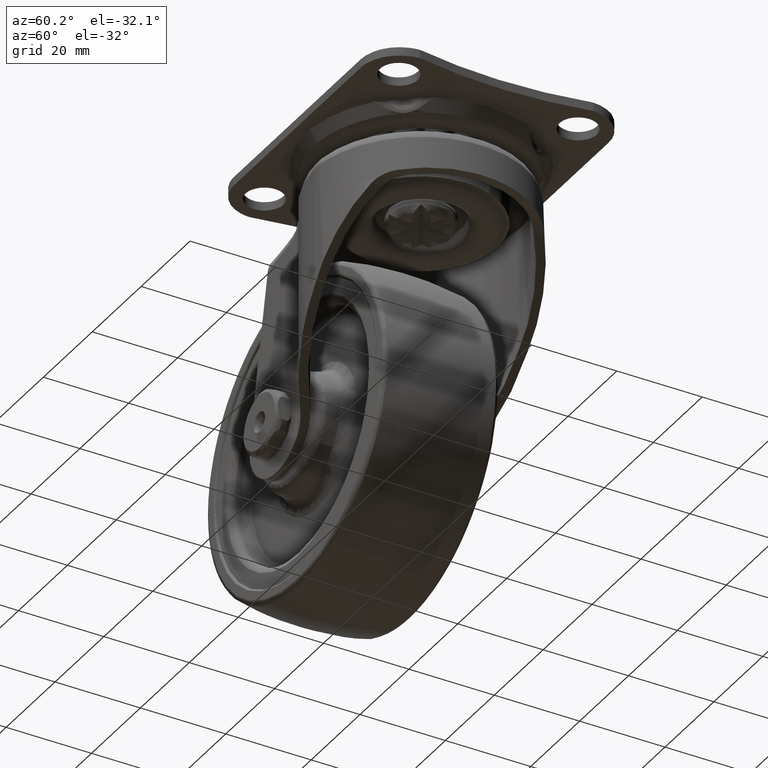
[diagram: clean part render]
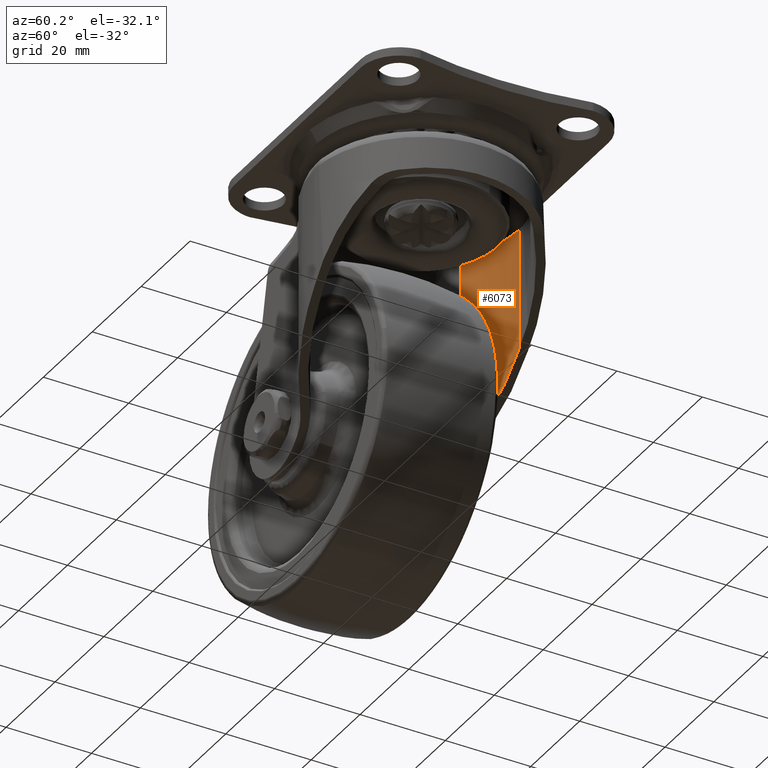
[diagram: same view with one face highlighted and labeled with its STEP entity id]
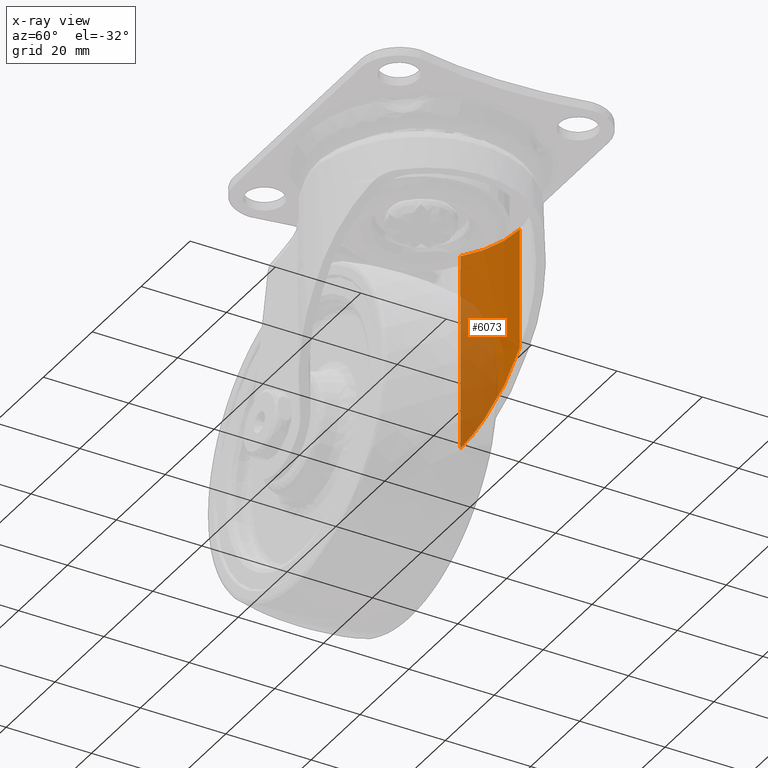
[diagram: x-ray of the same camera — body ghosted, the highlighted face saturated]
A machine part, auxiliary view. The second image highlights one B-rep face of the part: STEP entity #6073.
The next image is the same camera in x-ray: the body ghosted, the highlighted face saturated — about 42% of this face is hidden behind the body in this view.
In plain terms, the highlighted face is a freeform B-spline surface patch.
Its self-contained STEP definition (entity closure, byte-faithful):
#1794=CARTESIAN_POINT('',(0.0,22.999990000000000,-10.606000999999980));
#1795=VERTEX_POINT('',#1794);
#1905=CARTESIAN_POINT('',(-14.767029445485040,17.633331544443848,-10.606000999999980));
#1906=VERTEX_POINT('',#1905);
#1920=CARTESIAN_POINT('',(0.0,22.999990000000000,-10.606000999999980));
#1921=CARTESIAN_POINT('',(-8.358694703418935,22.999990000000004,-10.606000999999980));
#1922=CARTESIAN_POINT('',(-14.767029445485029,17.633331544443841,-10.606000999999980));
#1930=(BOUNDED_CURVE()B_SPLINE_CURVE(2,(#1920,#1921,#1922),.UNSPECIFIED.,.F.,.U.)CURVE()GEOMETRIC_REPRESENTATION_ITEM()QUASI_UNIFORM_CURVE()RATIONAL_B_SPLINE_CURVE((1.0,0.939858213301961,1.0))REPRESENTATION_ITEM(''));
#1931=EDGE_CURVE('',#1795,#1906,#1930,.T.);
#5392=CARTESIAN_POINT('',(-5.551115E-014,22.999990000000000,-39.023656566777198));
#5393=VERTEX_POINT('',#5392);
#5399=CARTESIAN_POINT('',(-14.767029445485040,17.633331544443848,-56.788594440344497));
#5400=VERTEX_POINT('',#5399);
#5401=CARTESIAN_POINT('',(1.408297E-015,22.999990000000000,-39.023656566777092));
#5402=CARTESIAN_POINT('',(-8.358694703418925,22.999989999999997,-49.079280323642735));
#5403=CARTESIAN_POINT('',(-14.767029445485020,17.633331544443859,-56.788594440344433));
#5411=(BOUNDED_CURVE()B_SPLINE_CURVE(2,(#5401,#5402,#5403),.UNSPECIFIED.,.F.,.U.)CURVE()GEOMETRIC_REPRESENTATION_ITEM()QUASI_UNIFORM_CURVE()RATIONAL_B_SPLINE_CURVE((1.0,0.939858213301959,1.0))REPRESENTATION_ITEM(''));
#5412=EDGE_CURVE('',#5393,#5400,#5411,.T.);
#6037=CARTESIAN_POINT('',(-14.767029445485040,17.633331544443848,-56.788594440344497));
#6038=CARTESIAN_POINT('',(-14.767029445485040,17.633331544443848,-10.606000999999980));
#6039=QUASI_UNIFORM_CURVE('',1,(#6037,#6038),.UNSPECIFIED.,.F.,.U.);
#6040=EDGE_CURVE('',#5400,#1906,#6039,.T.);
#6049=CARTESIAN_POINT('',(-15.240254482761530,17.225974088589791,-57.943159276353107));
#6050=CARTESIAN_POINT('',(-15.240254482761530,17.225974088589791,-9.422572043091144));
#6051=CARTESIAN_POINT('',(-8.375057302278645,23.299787480321267,-57.943159276353121));
#6052=CARTESIAN_POINT('',(-8.375057302278645,23.299787480321267,-9.422572043091146));
#6053=CARTESIAN_POINT('',(0.785948560205467,22.986557481728553,-57.943159276353114));
#6054=CARTESIAN_POINT('',(0.785948560205467,22.986557481728553,-9.422572043091142));
#6062=(BOUNDED_SURFACE()B_SPLINE_SURFACE(1,2,((#6049,#6051,#6053),(#6050,#6052,#6054)),.UNSPECIFIED.,.F.,.F.,.U.)B_SPLINE_SURFACE_WITH_KNOTS((2,2),(3,3),(0.0,48.520587233261978),(0.0,17.657322119083702),.UNSPECIFIED.)GEOMETRIC_REPRESENTATION_ITEM()RATIONAL_B_SPLINE_SURFACE(((1.0,0.924998035501477,0.991521558355123),(1.0,0.924998035501477,0.991521558355123)))REPRESENTATION_ITEM('')SURFACE());
#6063=CARTESIAN_POINT('',(-5.551115E-014,22.999990000000000,-39.023656566777198));
#6064=CARTESIAN_POINT('',(0.0,22.999990000000000,-10.606000999999980));
#6065=QUASI_UNIFORM_CURVE('',1,(#6063,#6064),.UNSPECIFIED.,.F.,.U.);
#6066=EDGE_CURVE('',#5393,#1795,#6065,.T.);
#6067=ORIENTED_EDGE('',*,*,#6066,.T.);
#6068=ORIENTED_EDGE('',*,*,#1931,.T.);
#6069=ORIENTED_EDGE('',*,*,#6040,.F.);
#6070=ORIENTED_EDGE('',*,*,#5412,.F.);
#6071=EDGE_LOOP('',(#6067,#6068,#6069,#6070));
#6072=FACE_OUTER_BOUND('',#6071,.T.);
#6073=ADVANCED_FACE('',(#6072),#6062,.F.);